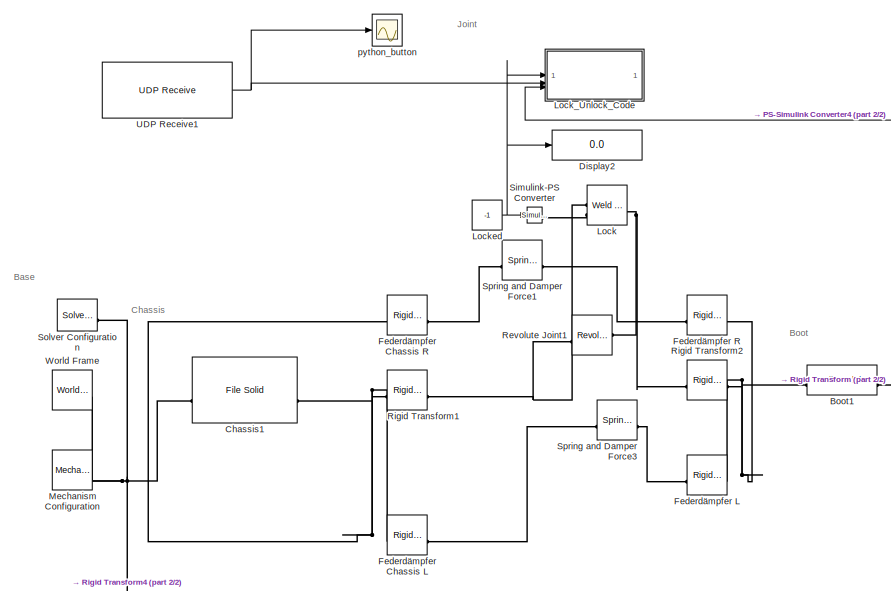
[diagram: root canvas - part 1/2, middle left region]
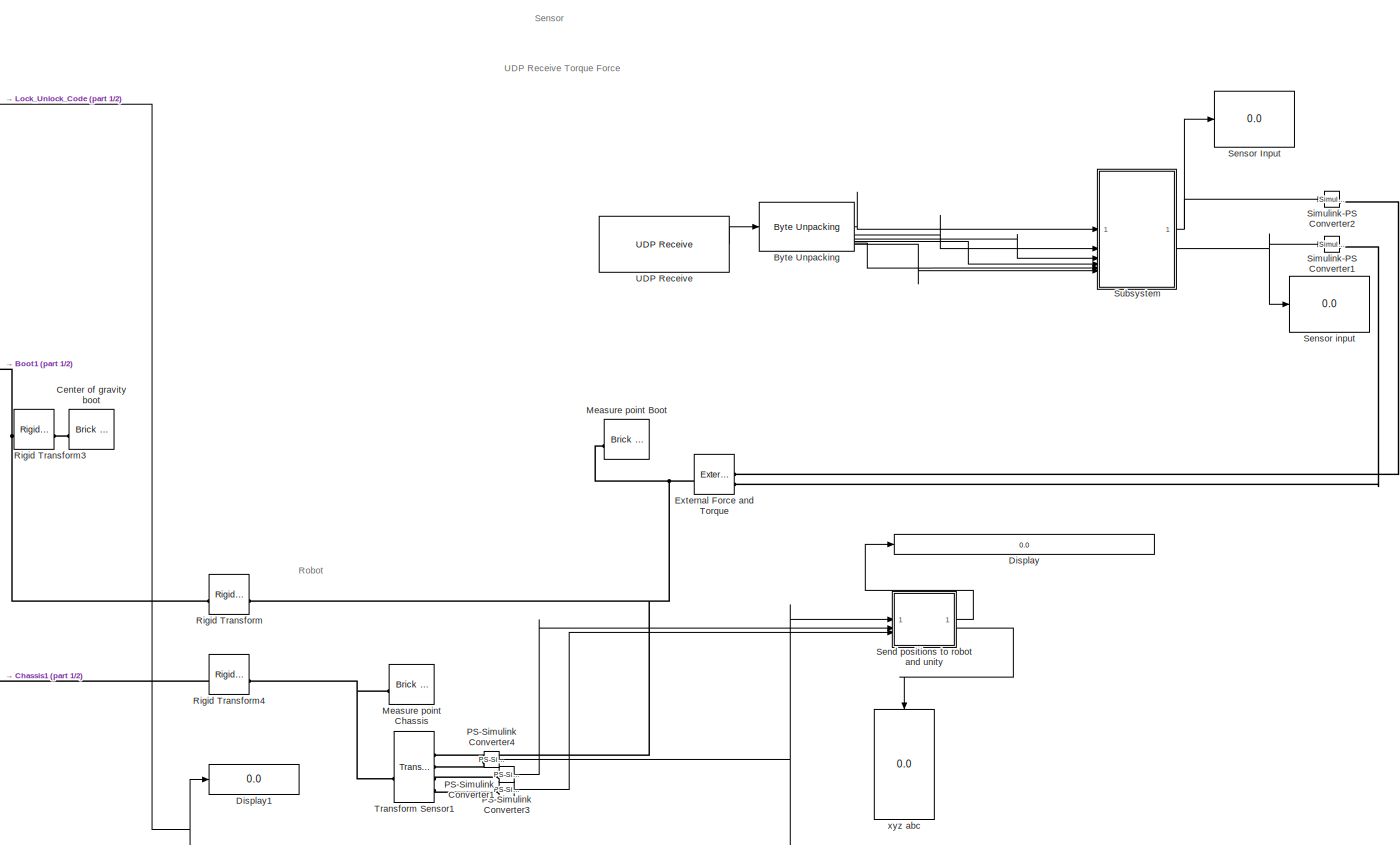
[diagram: root canvas - part 2/2, right side, full height]
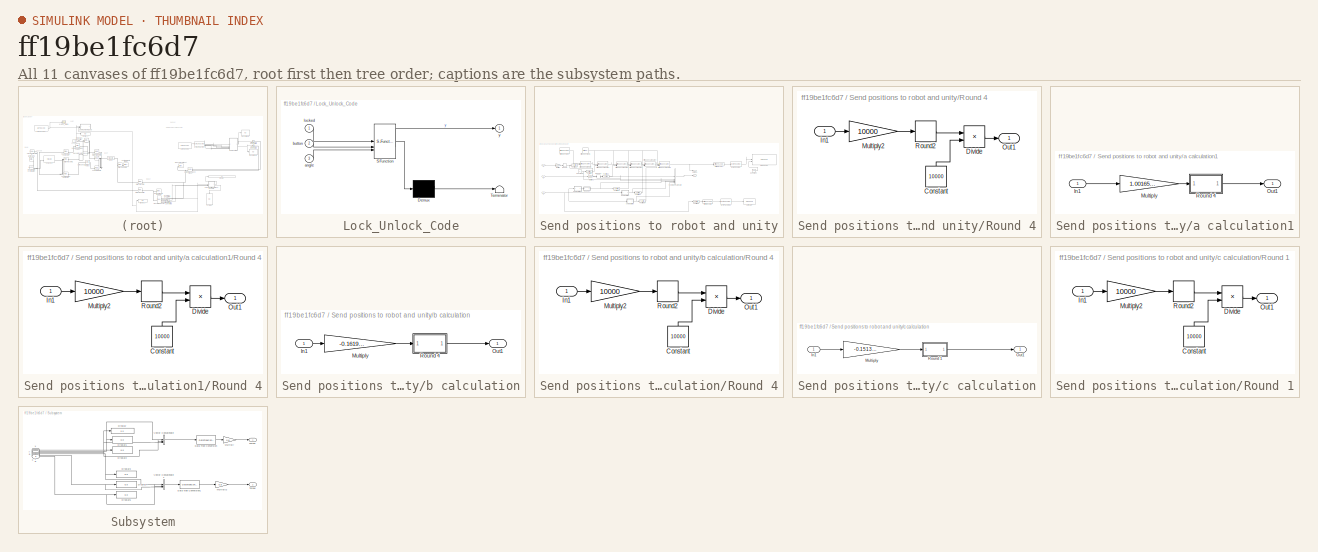
[diagram: thumbnail index - all 11 canvases of the model, root first then tree order]
MODEL slx_ff19be1fc6d7
KIND model
CONFIG AbsTol = auto
CONFIG EnableMultiTasking = off
CONFIG FixedStep = auto
CONFIG MaxStep = auto
CONFIG MinStep = auto
CONFIG RelTol = 1e-3
CONFIG SampleTimeConstraint = Unconstrained
CONFIG SolverName = VariableStepAuto
CONFIG StartFcn = %url_dc = 'http://localhost:51310/aas/joint_mechanism_1_aas/submodels/joint_mechanism_specific_submodel/elements/DampingCoefficient';\n%response = webread(url_dc);\n%set_param('Detailed_Simulation_v15_aas_if_V192_168_179_2/Revolute Joint1/','DampingCoefficient', response.elem.value);\n%url_lal = 'http://localhost:51310/aas/joint_mechanism_1_aas/submodels/joint_mechanism_specific_submodel/elements/Low...<+148ch>
CONFIG StartTime = 0.0
CONFIG StopTime = 100000
BLOCK [Reference] Boot1  REF=sm_lib/Body Elements/File Solid
  SourceBlock = sm_lib/Body Elements/File Solid
  SourceType = File Solid
BLOCK [Reference] Byte Unpacking  REF=slrealtimeutilitieslib/Byte Unpacking
  SourceBlock = slrealtimeutilitieslib/Byte Unpacking
  SourceType = slreraltimebytepacking
BLOCK [Reference] Center of gravity boot  REF=sm_lib/Body Elements/Brick Solid
  NameLocation = top
  SourceBlock = sm_lib/Body Elements/Brick Solid
  SourceType = Brick Solid
BLOCK [Reference] Chassis1  REF=sm_lib/Body Elements/File Solid
  NameLocation = top
  SourceBlock = sm_lib/Body Elements/File Solid
  SourceType = File Solid
BLOCK [Display] Display
  Decimation = 1
BLOCK [Display] Display1
  Decimation = 1
BLOCK [Display] Display2
  Decimation = 1
BLOCK [Reference] External Force and Torque  REF=sm_lib/Forces and
Torques/External Force
and Torque
  NameLocation = top
  SourceBlock = sm_lib/Forces and\nTorques/External Force\nand Torque
  SourceType = External Force\nand Torque
BLOCK [Reference] Federdämpfer Chassis L  REF=sm_lib/Frames and
Transforms/Rigid
Transform
  SourceBlock = sm_lib/Frames and\nTransforms/Rigid\nTransform
  SourceType = Rigid\nTransform
BLOCK [Reference] Federdämpfer Chassis R  REF=sm_lib/Frames and
Transforms/Rigid
Transform
  SourceBlock = sm_lib/Frames and\nTransforms/Rigid\nTransform
  SourceType = Rigid\nTransform
BLOCK [Reference] Federdämpfer L  REF=sm_lib/Frames and
Transforms/Rigid
Transform
  SourceBlock = sm_lib/Frames and\nTransforms/Rigid\nTransform
  SourceType = Rigid\nTransform
BLOCK [Reference] Federdämpfer R  REF=sm_lib/Frames and
Transforms/Rigid
Transform
  SourceBlock = sm_lib/Frames and\nTransforms/Rigid\nTransform
  SourceType = Rigid\nTransform
BLOCK [Reference] Lock  REF=sm_lib/Joints/Weld Joint
  SourceBlock = sm_lib/Joints/Weld Joint
  SourceType = Weld Joint
BLOCK [SubSystem] Lock_Unlock_Code
  ErrorFcn = Stateflow.Translate.translate
  PermitHierarchicalResolution = ExplicitOnly
  SFBlockType = MATLAB Function
  TreatAsAtomicUnit = on
BLOCK [Demux] Lock_Unlock_Code/ Demux 
  Outputs = 1
BLOCK [S-Function] Lock_Unlock_Code/ SFunction 
  EnableBusSupport = on
  FunctionName = sf_sfun
  PortCounts = [3 2]
  SFcnIsStateOwnerBlock = off
  SFunctionDeploymentMode = off
  Tag = Stateflow S-Function 3
BLOCK [Terminator] Lock_Unlock_Code/ Terminator 
BLOCK [Inport] Lock_Unlock_Code/angle
  Port = 3
BLOCK [Inport] Lock_Unlock_Code/button
  Port = 2
BLOCK [Inport] Lock_Unlock_Code/locked
BLOCK [Outport] Lock_Unlock_Code/y
BLOCK [Constant] Locked
  Value = -1
BLOCK [Reference] Measure point Boot  REF=sm_lib/Body Elements/Brick Solid
  NameLocation = top
  SourceBlock = sm_lib/Body Elements/Brick Solid
  SourceType = Brick Solid
BLOCK [Reference] Measure point Chassis  REF=sm_lib/Body Elements/Brick Solid
  NameLocation = top
  SourceBlock = sm_lib/Body Elements/Brick Solid
  SourceType = Brick Solid
BLOCK [Reference] Mechanism Configuration  REF=sm_lib/Utilities/Mechanism
Configuration
  SourceBlock = sm_lib/Utilities/Mechanism\nConfiguration
  SourceType = Mechanism\nConfiguration
BLOCK [Reference] PS-Simulink Converter1  REF=nesl_utility/PS-Simulink
Converter
  SourceBlock = nesl_utility/PS-Simulink\nConverter
  SourceType = PS-Simulink\nConverter
BLOCK [Reference] PS-Simulink Converter3  REF=nesl_utility/PS-Simulink
Converter
  SourceBlock = nesl_utility/PS-Simulink\nConverter
  SourceType = PS-Simulink\nConverter
BLOCK [Reference] PS-Simulink Converter4  REF=nesl_utility/PS-Simulink
Converter
  SourceBlock = nesl_utility/PS-Simulink\nConverter
  SourceType = PS-Simulink\nConverter
BLOCK [Reference] Revolute Joint1  REF=sm_lib/Joints/Revolute Joint
  SourceBlock = sm_lib/Joints/Revolute Joint
  SourceType = Revolute Joint
BLOCK [Reference] Rigid Transform  REF=sm_lib/Frames and
Transforms/Rigid
Transform
  SourceBlock = sm_lib/Frames and\nTransforms/Rigid\nTransform
  SourceType = Rigid\nTransform
BLOCK [Reference] Rigid Transform1  REF=sm_lib/Frames and
Transforms/Rigid
Transform
  SourceBlock = sm_lib/Frames and\nTransforms/Rigid\nTransform
  SourceType = Rigid\nTransform
BLOCK [Reference] Rigid Transform2  REF=sm_lib/Frames and
Transforms/Rigid
Transform
  SourceBlock = sm_lib/Frames and\nTransforms/Rigid\nTransform
  SourceType = Rigid\nTransform
BLOCK [Reference] Rigid Transform3  REF=sm_lib/Frames and
Transforms/Rigid
Transform
  SourceBlock = sm_lib/Frames and\nTransforms/Rigid\nTransform
  SourceType = Rigid\nTransform
BLOCK [Reference] Rigid Transform4  REF=sm_lib/Frames and
Transforms/Rigid
Transform
  SourceBlock = sm_lib/Frames and\nTransforms/Rigid\nTransform
  SourceType = Rigid\nTransform
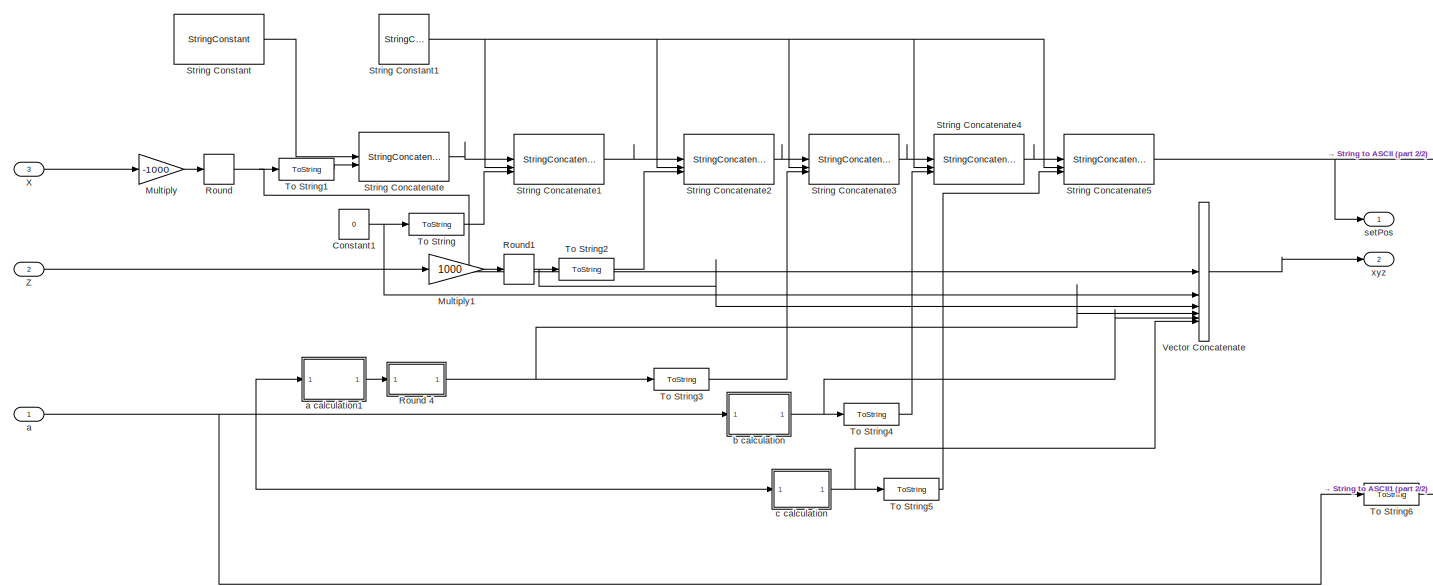
[diagram: Send positions to robot and unity - part 1/2, center side, full height]
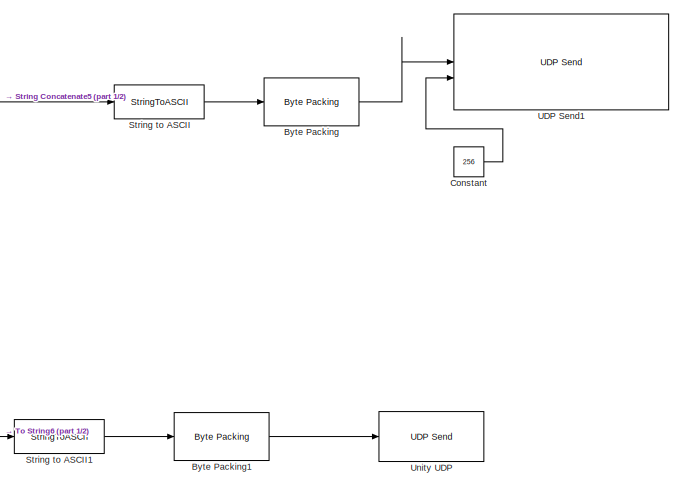
[diagram: Send positions to robot and unity - part 2/2, right side, full height]
BLOCK [SubSystem] Send positions to robot and unity
BLOCK [Reference] Send positions to robot and unity/Byte Packing  REF=slrealtimeutilitieslib/Byte Packing
  SourceBlock = slrealtimeutilitieslib/Byte Packing
  SourceType = slrealtimebytepacking
BLOCK [Reference] Send positions to robot and unity/Byte Packing1  REF=slrealtimeutilitieslib/Byte Packing
  SourceBlock = slrealtimeutilitieslib/Byte Packing
  SourceType = slrealtimebytepacking
BLOCK [Constant] Send positions to robot and unity/Constant
  Value = 256
BLOCK [Constant] Send positions to robot and unity/Constant1
  Value = 0
BLOCK [Gain] Send positions to robot and unity/Multiply
  Gain = -1000
BLOCK [Gain] Send positions to robot and unity/Multiply1
  Gain = 1000
BLOCK [Rounding] Send positions to robot and unity/Round
  Operator = round
BLOCK [SubSystem] Send positions to robot and unity/Round 4
BLOCK [Constant] Send positions to robot and unity/Round 4/Constant
  NameLocation = right
  Value = 10000
BLOCK [Product] Send positions to robot and unity/Round 4/Divide
  Inputs = */
BLOCK [Inport] Send positions to robot and unity/Round 4/In1
BLOCK [Gain] Send positions to robot and unity/Round 4/Multiply2
  Gain = 10000
BLOCK [Outport] Send positions to robot and unity/Round 4/Out1
BLOCK [Rounding] Send positions to robot and unity/Round 4/Round2
  Operator = round
BLOCK [Rounding] Send positions to robot and unity/Round1
  Operator = round
BLOCK [StringConcatenate] Send positions to robot and unity/String Concatenate
BLOCK [StringConcatenate] Send positions to robot and unity/String Concatenate1
  Inputs = 3
BLOCK [StringConcatenate] Send positions to robot and unity/String Concatenate2
  Inputs = 3
BLOCK [StringConcatenate] Send positions to robot and unity/String Concatenate3
  Inputs = 3
BLOCK [StringConcatenate] Send positions to robot and unity/String Concatenate4
  Inputs = 3
BLOCK [StringConcatenate] Send positions to robot and unity/String Concatenate5
  Inputs = 3
BLOCK [StringConstant] Send positions to robot and unity/String Constant
  String = "SET_POS,"
BLOCK [StringConstant] Send positions to robot and unity/String Constant1
  String = ","
BLOCK [StringToASCII] Send positions to robot and unity/String to ASCII
  OutputVectorSize = 64
BLOCK [StringToASCII] Send positions to robot and unity/String to ASCII1
  OutputVectorSize = 64
BLOCK [ToString] Send positions to robot and unity/To String
BLOCK [ToString] Send positions to robot and unity/To String1
BLOCK [ToString] Send positions to robot and unity/To String2
BLOCK [ToString] Send positions to robot and unity/To String3
BLOCK [ToString] Send positions to robot and unity/To String4
BLOCK [ToString] Send positions to robot and unity/To String5
BLOCK [ToString] Send positions to robot and unity/To String6
BLOCK [Reference] Send positions to robot and unity/UDP Send1  REF=slrealtimeiplib/UDP Send
  SourceBlock = slrealtimeiplib/UDP Send
  SourceType = slrealtimeudpsend
BLOCK [Reference] Send positions to robot and unity/Unity UDP  REF=dspnetwork/UDP Send
  SourceBlock = dspnetwork/UDP Send
  SourceType = UDP Send
BLOCK [Concatenate] Send positions to robot and unity/Vector Concatenate
  NumInputs = 6
BLOCK [Inport] Send positions to robot and unity/X
  Port = 3
BLOCK [Inport] Send positions to robot and unity/Z
  Port = 2
BLOCK [Inport] Send positions to robot and unity/a
BLOCK [SubSystem] Send positions to robot and unity/a calculation1
BLOCK [Inport] Send positions to robot and unity/a calculation1/In1
BLOCK [Gain] Send positions to robot and unity/a calculation1/Multiply
  Gain = 1.0016549968
BLOCK [Outport] Send positions to robot and unity/a calculation1/Out1
BLOCK [SubSystem] Send positions to robot and unity/a calculation1/Round 4
BLOCK [Constant] Send positions to robot and unity/a calculation1/Round 4/Constant
  NameLocation = right
  Value = 10000
BLOCK [Product] Send positions to robot and unity/a calculation1/Round 4/Divide
  Inputs = */
BLOCK [Inport] Send positions to robot and unity/a calculation1/Round 4/In1
BLOCK [Gain] Send positions to robot and unity/a calculation1/Round 4/Multiply2
  Gain = 10000
BLOCK [Outport] Send positions to robot and unity/a calculation1/Round 4/Out1
BLOCK [Rounding] Send positions to robot and unity/a calculation1/Round 4/Round2
  Operator = round
BLOCK [SubSystem] Send positions to robot and unity/b calculation
BLOCK [Inport] Send positions to robot and unity/b calculation/In1
BLOCK [Gain] Send positions to robot and unity/b calculation/Multiply
  Gain = -0.1619669001
BLOCK [Outport] Send positions to robot and unity/b calculation/Out1
BLOCK [SubSystem] Send positions to robot and unity/b calculation/Round 4
BLOCK [Constant] Send positions to robot and unity/b calculation/Round 4/Constant
  NameLocation = right
  Value = 10000
BLOCK [Product] Send positions to robot and unity/b calculation/Round 4/Divide
  Inputs = */
BLOCK [Inport] Send positions to robot and unity/b calculation/Round 4/In1
BLOCK [Gain] Send positions to robot and unity/b calculation/Round 4/Multiply2
  Gain = 10000
BLOCK [Outport] Send positions to robot and unity/b calculation/Round 4/Out1
BLOCK [Rounding] Send positions to robot and unity/b calculation/Round 4/Round2
  Operator = round
BLOCK [SubSystem] Send positions to robot and unity/c calculation
BLOCK [Inport] Send positions to robot and unity/c calculation/In1
BLOCK [Gain] Send positions to robot and unity/c calculation/Multiply
  Gain = -0.1513844685
BLOCK [Outport] Send positions to robot and unity/c calculation/Out1
BLOCK [SubSystem] Send positions to robot and unity/c calculation/Round 1
BLOCK [Constant] Send positions to robot and unity/c calculation/Round 1/Constant
  NameLocation = right
  Value = 10000
BLOCK [Product] Send positions to robot and unity/c calculation/Round 1/Divide
  Inputs = */
BLOCK [Inport] Send positions to robot and unity/c calculation/Round 1/In1
BLOCK [Gain] Send positions to robot and unity/c calculation/Round 1/Multiply2
  Gain = 10000
BLOCK [Outport] Send positions to robot and unity/c calculation/Round 1/Out1
BLOCK [Rounding] Send positions to robot and unity/c calculation/Round 1/Round2
  Operator = round
BLOCK [Outport] Send positions to robot and unity/setPos
BLOCK [Outport] Send positions to robot and unity/xyz
  Port = 2
BLOCK [Display] Sensor Input
  Decimation = 1
BLOCK [Display] Sensor input
  Decimation = 1
BLOCK [Reference] Simulink-PS Converter  REF=nesl_utility/Simulink-PS
Converter
  SourceBlock = nesl_utility/Simulink-PS\nConverter
  SourceType = Simulink-PS\nConverter
BLOCK [Reference] Simulink-PS Converter1  REF=nesl_utility/Simulink-PS
Converter
  SourceBlock = nesl_utility/Simulink-PS\nConverter
  SourceType = Simulink-PS\nConverter
BLOCK [Reference] Simulink-PS Converter2  REF=nesl_utility/Simulink-PS
Converter
  SourceBlock = nesl_utility/Simulink-PS\nConverter
  SourceType = Simulink-PS\nConverter
BLOCK [Reference] Solver Configuration  REF=nesl_utility/Solver
Configuration
  SourceBlock = nesl_utility/Solver\nConfiguration
  SourceType = Solver\nConfiguration
BLOCK [Reference] Spring and Damper Force1  REF=sm_lib/Forces and
Torques/Spring and
Damper Force
  SourceBlock = sm_lib/Forces and\nTorques/Spring and\nDamper Force
  SourceType = Spring and\nDamper Force
BLOCK [Reference] Spring and Damper Force3  REF=sm_lib/Forces and
Torques/Spring and
Damper Force
  SourceBlock = sm_lib/Forces and\nTorques/Spring and\nDamper Force
  SourceType = Spring and\nDamper Force
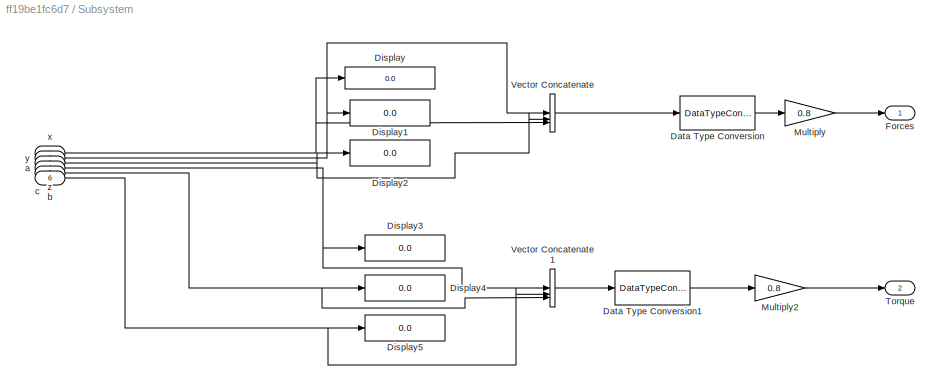
BLOCK [SubSystem] Subsystem
BLOCK [DataTypeConversion] Subsystem/Data Type Conversion
  RndMeth = Floor
  SaturateOnIntegerOverflow = off
BLOCK [DataTypeConversion] Subsystem/Data Type Conversion1
  RndMeth = Floor
  SaturateOnIntegerOverflow = off
BLOCK [Display] Subsystem/Display
  Decimation = 1
BLOCK [Display] Subsystem/Display1
  Decimation = 1
BLOCK [Display] Subsystem/Display2
  Decimation = 1
BLOCK [Display] Subsystem/Display3
  Decimation = 1
BLOCK [Display] Subsystem/Display4
  Decimation = 1
BLOCK [Display] Subsystem/Display5
  Decimation = 1
BLOCK [Outport] Subsystem/Forces
BLOCK [Gain] Subsystem/Multiply
  Gain = 0.8
  NameLocation = top
BLOCK [Gain] Subsystem/Multiply2
  Gain = 0.8
  NameLocation = top
BLOCK [Outport] Subsystem/Torque
  Port = 2
BLOCK [Concatenate] Subsystem/Vector Concatenate
  NumInputs = 3
BLOCK [Concatenate] Subsystem/Vector Concatenate1
  NumInputs = 3
BLOCK [Inport] Subsystem/a
  Port = 4
BLOCK [Inport] Subsystem/b
  Port = 5
BLOCK [Inport] Subsystem/c
  Port = 6
BLOCK [Inport] Subsystem/x
BLOCK [Inport] Subsystem/y
  Port = 2
BLOCK [Inport] Subsystem/z
  Port = 3
BLOCK [Reference] Transform Sensor1  REF=sm_lib/Frames and
Transforms/Transform
Sensor
  SourceBlock = sm_lib/Frames and\nTransforms/Transform\nSensor
  SourceType = Transform\nSensor
BLOCK [Reference] UDP Receive  REF=instrumentlib/UDP Receive
  SourceBlock = instrumentlib/UDP Receive
  SourceType = instrument.system.UDPReceive
BLOCK [Reference] UDP Receive1  REF=instrumentlib/UDP Receive
  SourceBlock = instrumentlib/UDP Receive
  SourceType = instrument.system.UDPReceive
BLOCK [Reference] World Frame  REF=sm_lib/Frames and
Transforms/World Frame
  SourceBlock = sm_lib/Frames and\nTransforms/World Frame
  SourceType = World Frame
BLOCK [Scope] python_button
  Floating = off
  NumInputPorts = 1
  ScopeSpecificationString = Simulink.scopes.TimeScopeBlockCfg('CurrentConfiguration', extmgr.ConfigurationSet(extmgr.Configuration('Core','General UI',true,'DisplayFullSourceName',true),extmgr.Configuration('Core','Source UI',true),extmgr.Configuration('Sources','WiredSimulink',true),extmgr.Configuration('Visuals','Time Domain',true,'SerializedDisplays',{struct('MinYLimReal','-1.00000','MaxYLimReal','1.00000','YLabelReal',''...<+1553ch>
BLOCK [Display] xyz abc
  Decimation = 1
  NameLocation = left
ANNOTATION (root): Base
ANNOTATION (root): Boot
ANNOTATION (root): Chassis
ANNOTATION (root): Joint
ANNOTATION (root): Robot
ANNOTATION (root): Sensor
ANNOTATION (root): UDP Receive Torque Force
LINE Byte Unpacking:1 -> Subsystem:1
LINE Byte Unpacking:2 -> Subsystem:2
LINE Byte Unpacking:3 -> Subsystem:3
LINE Byte Unpacking:4 -> Subsystem:4
LINE Byte Unpacking:5 -> Subsystem:5
LINE Byte Unpacking:6 -> Subsystem:6
NET Locked:1 -> Display2:1, Lock_Unlock_Code:1, Simulink-PS Converter:1
LINE PS-Simulink Converter1:1 -> Send positions to robot and unity:3
LINE PS-Simulink Converter3:1 -> Send positions to robot and unity:2
NET PS-Simulink Converter4:1 -> Display1:1, Lock_Unlock_Code:3, Send positions to robot and unity:1
LINE Send positions to robot and unity/Byte Packing1:1 -> Send positions to robot and unity/Unity UDP:1
LINE Send positions to robot and unity/Byte Packing:1 -> Send positions to robot and unity/UDP Send1:1
NET Send positions to robot and unity/Constant1:1 -> Send positions to robot and unity/To String:1, Send positions to robot and unity/Vector Concatenate:2
LINE Send positions to robot and unity/Constant:1 -> Send positions to robot and unity/UDP Send1:2
LINE Send positions to robot and unity/Multiply1:1 -> Send positions to robot and unity/Round1:1
LINE Send positions to robot and unity/Multiply:1 -> Send positions to robot and unity/Round:1
LINE Send positions to robot and unity/Round 4/Constant:1 -> Send positions to robot and unity/Round 4/Divide:2
LINE Send positions to robot and unity/Round 4/Divide:1 -> Send positions to robot and unity/Round 4/Out1:1
LINE Send positions to robot and unity/Round 4/In1:1 -> Send positions to robot and unity/Round 4/Multiply2:1
LINE Send positions to robot and unity/Round 4/Multiply2:1 -> Send positions to robot and unity/Round 4/Round2:1
LINE Send positions to robot and unity/Round 4/Round2:1 -> Send positions to robot and unity/Round 4/Divide:1
NET Send positions to robot and unity/Round 4:1 -> Send positions to robot and unity/To String3:1, Send positions to robot and unity/Vector Concatenate:4
NET Send positions to robot and unity/Round1:1 -> Send positions to robot and unity/To String2:1, Send positions to robot and unity/Vector Concatenate:3
NET Send positions to robot and unity/Round:1 -> Send positions to robot and unity/To String1:1, Send positions to robot and unity/Vector Concatenate:1
LINE Send positions to robot and unity/String Concatenate1:1 -> Send positions to robot and unity/String Concatenate2:1
LINE Send positions to robot and unity/String Concatenate2:1 -> Send positions to robot and unity/String Concatenate3:1
LINE Send positions to robot and unity/String Concatenate3:1 -> Send positions to robot and unity/String Concatenate4:1
LINE Send positions to robot and unity/String Concatenate4:1 -> Send positions to robot and unity/String Concatenate5:1
NET Send positions to robot and unity/String Concatenate5:1 -> Send positions to robot and unity/String to ASCII:1, Send positions to robot and unity/setPos:1
LINE Send positions to robot and unity/String Concatenate:1 -> Send positions to robot and unity/String Concatenate1:1
NET Send positions to robot and unity/String Constant1:1 -> Send positions to robot and unity/String Concatenate1:2, Send positions to robot and unity/String Concatenate2:2, Send positions to robot and unity/String Concatenate3:2, Send positions to robot and unity/String Concatenate4:2, Send positions to robot and unity/String Concatenate5:2
LINE Send positions to robot and unity/String Constant:1 -> Send positions to robot and unity/String Concatenate:1
LINE Send positions to robot and unity/String to ASCII1:1 -> Send positions to robot and unity/Byte Packing1:1
LINE Send positions to robot and unity/String to ASCII:1 -> Send positions to robot and unity/Byte Packing:1
LINE Send positions to robot and unity/To String1:1 -> Send positions to robot and unity/String Concatenate:2
LINE Send positions to robot and unity/To String2:1 -> Send positions to robot and unity/String Concatenate2:3
LINE Send positions to robot and unity/To String3:1 -> Send positions to robot and unity/String Concatenate3:3
LINE Send positions to robot and unity/To String4:1 -> Send positions to robot and unity/String Concatenate4:3
LINE Send positions to robot and unity/To String5:1 -> Send positions to robot and unity/String Concatenate5:3
LINE Send positions to robot and unity/To String6:1 -> Send positions to robot and unity/String to ASCII1:1
LINE Send positions to robot and unity/To String:1 -> Send positions to robot and unity/String Concatenate1:3
LINE Send positions to robot and unity/Vector Concatenate:1 -> Send positions to robot and unity/xyz:1
LINE Send positions to robot and unity/X:1 -> Send positions to robot and unity/Multiply:1
LINE Send positions to robot and unity/Z:1 -> Send positions to robot and unity/Multiply1:1
LINE Send positions to robot and unity/a calculation1/In1:1 -> Send positions to robot and unity/a calculation1/Multiply:1
LINE Send positions to robot and unity/a calculation1/Multiply:1 -> Send positions to robot and unity/a calculation1/Round 4:1
LINE Send positions to robot and unity/a calculation1/Round 4/Constant:1 -> Send positions to robot and unity/a calculation1/Round 4/Divide:2
LINE Send positions to robot and unity/a calculation1/Round 4/Divide:1 -> Send positions to robot and unity/a calculation1/Round 4/Out1:1
LINE Send positions to robot and unity/a calculation1/Round 4/In1:1 -> Send positions to robot and unity/a calculation1/Round 4/Multiply2:1
LINE Send positions to robot and unity/a calculation1/Round 4/Multiply2:1 -> Send positions to robot and unity/a calculation1/Round 4/Round2:1
LINE Send positions to robot and unity/a calculation1/Round 4/Round2:1 -> Send positions to robot and unity/a calculation1/Round 4/Divide:1
LINE Send positions to robot and unity/a calculation1/Round 4:1 -> Send positions to robot and unity/a calculation1/Out1:1
LINE Send positions to robot and unity/a calculation1:1 -> Send positions to robot and unity/Round 4:1
NET Send positions to robot and unity/a:1 -> Send positions to robot and unity/To String6:1, Send positions to robot and unity/a calculation1:1, Send positions to robot and unity/b calculation:1, Send positions to robot and unity/c calculation:1
LINE Send positions to robot and unity/b calculation/In1:1 -> Send positions to robot and unity/b calculation/Multiply:1
LINE Send positions to robot and unity/b calculation/Multiply:1 -> Send positions to robot and unity/b calculation/Round 4:1
LINE Send positions to robot and unity/b calculation/Round 4/Constant:1 -> Send positions to robot and unity/b calculation/Round 4/Divide:2
LINE Send positions to robot and unity/b calculation/Round 4/Divide:1 -> Send positions to robot and unity/b calculation/Round 4/Out1:1
LINE Send positions to robot and unity/b calculation/Round 4/In1:1 -> Send positions to robot and unity/b calculation/Round 4/Multiply2:1
LINE Send positions to robot and unity/b calculation/Round 4/Multiply2:1 -> Send positions to robot and unity/b calculation/Round 4/Round2:1
LINE Send positions to robot and unity/b calculation/Round 4/Round2:1 -> Send positions to robot and unity/b calculation/Round 4/Divide:1
LINE Send positions to robot and unity/b calculation/Round 4:1 -> Send positions to robot and unity/b calculation/Out1:1
NET Send positions to robot and unity/b calculation:1 -> Send positions to robot and unity/To String4:1, Send positions to robot and unity/Vector Concatenate:5
LINE Send positions to robot and unity/c calculation/In1:1 -> Send positions to robot and unity/c calculation/Multiply:1
LINE Send positions to robot and unity/c calculation/Multiply:1 -> Send positions to robot and unity/c calculation/Round 1:1
LINE Send positions to robot and unity/c calculation/Round 1/Constant:1 -> Send positions to robot and unity/c calculation/Round 1/Divide:2
LINE Send positions to robot and unity/c calculation/Round 1/Divide:1 -> Send positions to robot and unity/c calculation/Round 1/Out1:1
LINE Send positions to robot and unity/c calculation/Round 1/In1:1 -> Send positions to robot and unity/c calculation/Round 1/Multiply2:1
LINE Send positions to robot and unity/c calculation/Round 1/Multiply2:1 -> Send positions to robot and unity/c calculation/Round 1/Round2:1
LINE Send positions to robot and unity/c calculation/Round 1/Round2:1 -> Send positions to robot and unity/c calculation/Round 1/Divide:1
LINE Send positions to robot and unity/c calculation/Round 1:1 -> Send positions to robot and unity/c calculation/Out1:1
NET Send positions to robot and unity/c calculation:1 -> Send positions to robot and unity/To String5:1, Send positions to robot and unity/Vector Concatenate:6
LINE Send positions to robot and unity:1 -> Display:1
LINE Send positions to robot and unity:2 -> xyz abc:1
LINE Subsystem/Data Type Conversion1:1 -> Subsystem/Multiply2:1
LINE Subsystem/Data Type Conversion:1 -> Subsystem/Multiply:1
LINE Subsystem/Multiply2:1 -> Subsystem/Torque:1
LINE Subsystem/Multiply:1 -> Subsystem/Forces:1
LINE Subsystem/Vector Concatenate1:1 -> Subsystem/Data Type Conversion1:1
LINE Subsystem/Vector Concatenate:1 -> Subsystem/Data Type Conversion:1
NET Subsystem/a:1 -> Subsystem/Display3:1, Subsystem/Vector Concatenate1:1
NET Subsystem/b:1 -> Subsystem/Display4:1, Subsystem/Vector Concatenate1:3
NET Subsystem/c:1 -> Subsystem/Display5:1, Subsystem/Vector Concatenate1:2
NET Subsystem/x:1 -> Subsystem/Display:1, Subsystem/Vector Concatenate:3
NET Subsystem/y:1 -> Subsystem/Display1:1, Subsystem/Vector Concatenate:1
NET Subsystem/z:1 -> Subsystem/Display2:1, Subsystem/Vector Concatenate:2
NET Subsystem:1 -> Sensor Input:1, Simulink-PS Converter2:1
NET Subsystem:2 -> Sensor input:1, Simulink-PS Converter1:1
NET UDP Receive1:1 -> Lock_Unlock_Code:2, python_button:1
LINE UDP Receive:1 -> Byte Unpacking:1
PNET net1: Boot1:LConn1 -- Federdämpfer L:RConn1 -- Federdämpfer R:RConn1 -- Rigid Transform2:RConn1
PNET net2: Boot1:RConn1 -- Rigid Transform3:LConn1 -- Rigid Transform:LConn1
PLINE Center of gravity boot:RConn1 -- Rigid Transform3:RConn1
PNET net3: Chassis1:LConn1 -- Federdämpfer Chassis L:LConn1 -- Federdämpfer Chassis R:LConn1 -- Rigid Transform1:LConn1
PNET net4: Chassis1:RConn1 -- Mechanism Configuration:RConn1 -- Rigid Transform4:LConn1 -- Solver Configuration:RConn1 -- World Frame:RConn1
PLINE External Force and Torque:LConn1 -- Simulink-PS Converter2:RConn1
PLINE External Force and Torque:LConn2 -- Simulink-PS Converter1:RConn1
PNET net5: External Force and Torque:RConn1 -- Measure point Boot:RConn1 -- Rigid Transform:RConn1 -- Transform Sensor1:RConn1
PLINE Federdämpfer Chassis L:RConn1 -- Spring and Damper Force3:LConn1
PLINE Federdämpfer Chassis R:RConn1 -- Spring and Damper Force1:LConn1
PLINE Federdämpfer L:LConn1 -- Spring and Damper Force3:RConn1
PLINE Federdämpfer R:LConn1 -- Spring and Damper Force1:RConn1
PNET net6: Lock:LConn1 -- Revolute Joint1:LConn1 -- Rigid Transform1:RConn1
PLINE Lock:LConn2 -- Simulink-PS Converter:RConn1
PNET net7: Lock:RConn1 -- Revolute Joint1:RConn1 -- Rigid Transform2:LConn1
PNET net8: Measure point Chassis:RConn1 -- Rigid Transform4:RConn1 -- Transform Sensor1:LConn1
PLINE PS-Simulink Converter1:LConn1 -- Transform Sensor1:RConn4
PLINE PS-Simulink Converter3:LConn1 -- Transform Sensor1:RConn3
PLINE PS-Simulink Converter4:LConn1 -- Transform Sensor1:RConn2
note: NET lines group one-source signal fan-out (src -> all destinations, sorted); 1:1 wires keep LINE; PNET lines group multi-terminal physical nets as a canonical sorted terminal list (undirected conserving connections); 2-terminal nets keep the pairwise PLINE form
CHART Lock_Unlock_Code states=1 transitions=1
  STATE_LABEL 'eML_blk_kernel()'
  STATE_LABEL "SCRIPT:\nfunction y = fcn(locked, button, angle)\ncoder.extrinsic('set_param');\n%disp('teest');\n\nif angle < 0.01 %if Heckklappe is closed\n    if button == 0\n        %if Locked is not equal to 0 then we change it\n        if locked ~= 0\n%            set_param('Detailed_Simulation_v13_Normal_Geschwindigkeit/Locked','Value','0');%LOCK\n            set_param('Detailed_Simulation_aas_zhongying_nodecode/Loc...<+356ch>"
CHART  states=0 transitions=0
